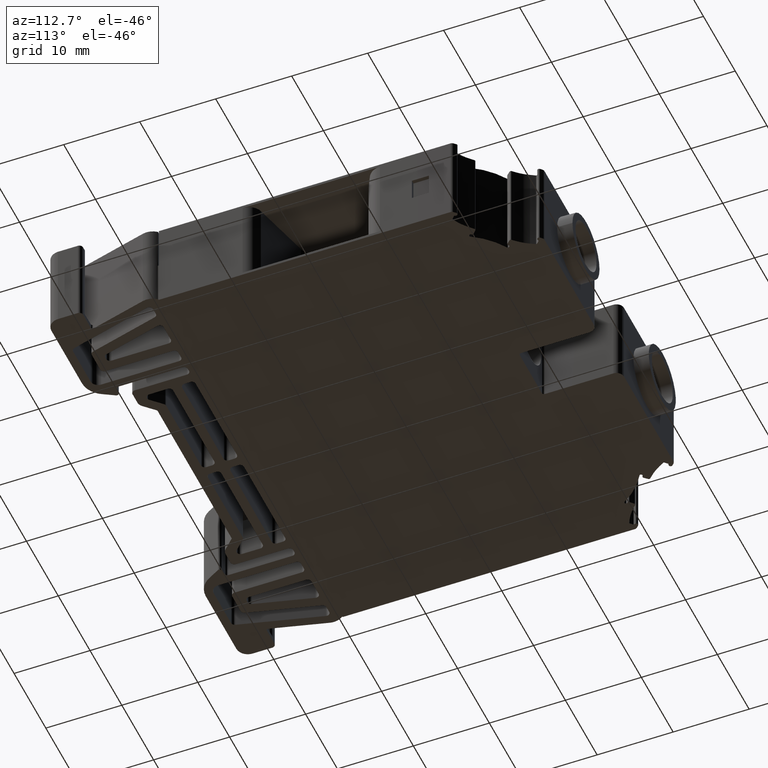
[diagram: clean part render]
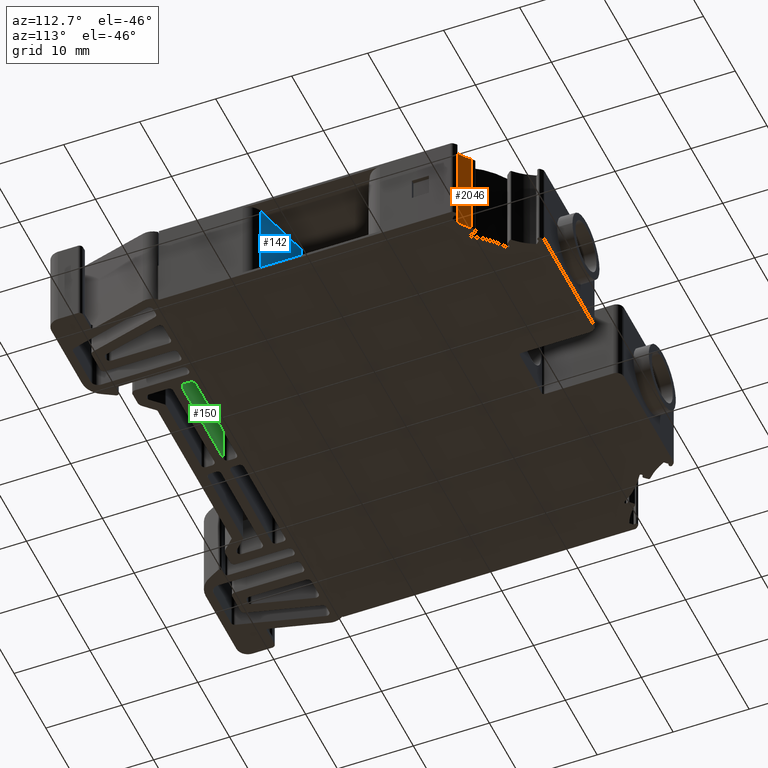
[diagram: same view with three faces highlighted in distinct colors, each labeled with its STEP entity id]
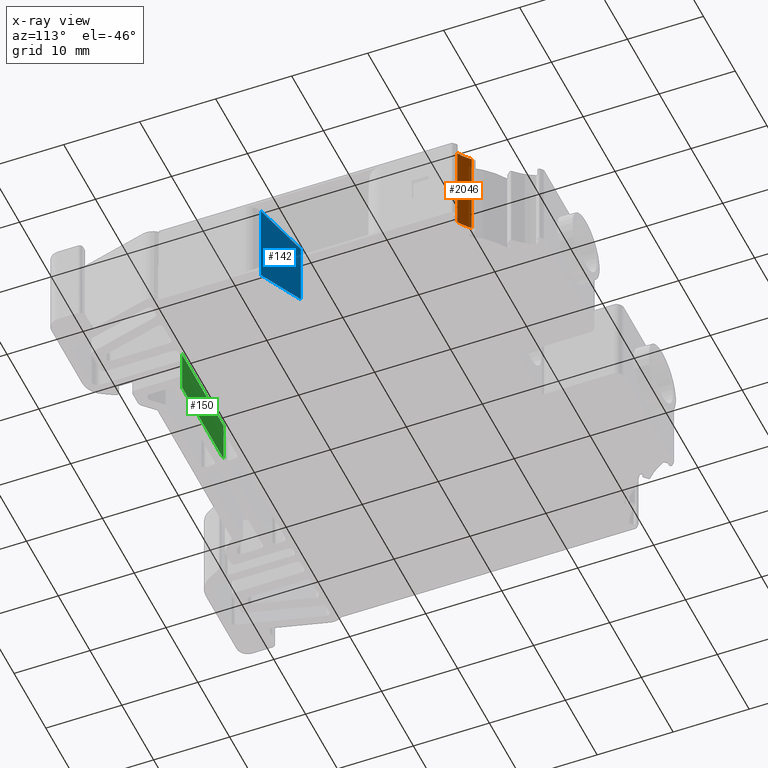
[diagram: x-ray of the same camera — body ghosted, the three highlighted faces saturated]
A machine part, auxiliary view with three faces highlighted in distinct colors.
The next image is the same camera in x-ray (body ghosted, the three faces saturated) — at least one of them is partly hidden behind the body in this view.
Their STEP definitions:

[orange] entity #2046 — the highlighted cylindrical surface (partial cylindrical patch) has radius 7.5 mm, axis along (-0, 0, 1).
#1803 = EDGE_CURVE ( 'NONE', #3716, #3698, #4843, .T. ) ;
#1828 = EDGE_CURVE ( 'NONE', #3741, #3645, #4808, .T. ) ;
#1835 = EDGE_CURVE ( 'NONE', #3645, #3716, #6918, .T. ) ;
#1846 = EDGE_CURVE ( 'NONE', #3698, #3741, #6911, .T. ) ;
#2046 = ADVANCED_FACE ( 'NONE', ( #7989 ), #7979, .F. ) ;
#3388 = EDGE_LOOP ( 'NONE', ( #14061, #14074, #14143, #14062 ) ) ;
#3645 = VERTEX_POINT ( 'NONE', #11806 ) ;
#3698 = VERTEX_POINT ( 'NONE', #11898 ) ;
#3716 = VERTEX_POINT ( 'NONE', #11871 ) ;
#3741 = VERTEX_POINT ( 'NONE', #11888 ) ;
#3817 = AXIS2_PLACEMENT_3D ( 'NONE', #7974, #7981, #8001 ) ;
#4808 = CIRCLE ( 'NONE', #4816, 7.500003262180587900 ) ;
#4816 = AXIS2_PLACEMENT_3D ( 'NONE', #6862, #6880, #6881 ) ;
#4843 = CIRCLE ( 'NONE', #4847, 7.500003262180587900 ) ;
#4847 = AXIS2_PLACEMENT_3D ( 'NONE', #6845, #6819, #6827 ) ;
#4889 = VECTOR ( 'NONE', #6934, 1000.000000000000000 ) ;
#4949 = VECTOR ( 'NONE', #6968, 1000.000000000000000 ) ;
#6819 = DIRECTION ( 'NONE',  ( -1.396592535537252100E-014, 0.0000000000000000000, 1.000000000000000000 ) ) ;
#6827 = DIRECTION ( 'NONE',  ( 1.000000000000000000, 0.0000000000000000000, 1.396592535537252200E-014 ) ) ;
#6845 = CARTESIAN_POINT ( 'NONE',  ( 1782.036554347570000, 815.0587654482960700, 7.372574772901430200E-014 ) ) ;
#6862 = CARTESIAN_POINT ( 'NONE',  ( 1782.036554347570000, 815.0587654482960700, 11.99999999997519100 ) ) ;
#6880 = DIRECTION ( 'NONE',  ( 1.396592535537252100E-014, -0.0000000000000000000, -1.000000000000000000 ) ) ;
#6881 = DIRECTION ( 'NONE',  ( 1.000000000000000000, -1.480296722300844400E-014, 1.387778177157041700E-014 ) ) ;
#6911 = LINE ( 'NONE', #6928, #4949 ) ;
#6912 = CARTESIAN_POINT ( 'NONE',  ( 1776.733251181958800, 809.7554622826887700, 5.999999999999926300 ) ) ;
#6918 = LINE ( 'NONE', #6912, #4889 ) ;
#6928 = CARTESIAN_POINT ( 'NONE',  ( 1778.286556425059600, 808.5635699536333000, 5.999999999999948500 ) ) ;
#6934 = DIRECTION ( 'NONE',  ( 1.396592535537252100E-014, -0.0000000000000000000, -1.000000000000000000 ) ) ;
#6968 = DIRECTION ( 'NONE',  ( -1.396592535537252100E-014, 0.0000000000000000000, 1.000000000000000000 ) ) ;
#7974 = CARTESIAN_POINT ( 'NONE',  ( 1782.036554347570000, 815.0587654482960700, 6.000000000000000000 ) ) ;
#7979 = CYLINDRICAL_SURFACE ( 'NONE', #3817, 7.500003262180587900 ) ;
#7981 = DIRECTION ( 'NONE',  ( -1.396592535537252100E-014, 0.0000000000000000000, 1.000000000000000000 ) ) ;
#7989 = FACE_OUTER_BOUND ( 'NONE', #3388, .T. ) ;
#8001 = DIRECTION ( 'NONE',  ( 1.000000000000000000, 0.0000000000000000000, 1.399342995300017000E-014 ) ) ;
#11806 = CARTESIAN_POINT ( 'NONE',  ( 1776.733251181958800, 809.7554622826887700, 11.99999999997512200 ) ) ;
#11871 = CARTESIAN_POINT ( 'NONE',  ( 1776.733251181959300, 809.7554622826883100, -1.734723475976807100E-015 ) ) ;
#11888 = CARTESIAN_POINT ( 'NONE',  ( 1778.286556441120000, 808.5635699660011800, 11.99999999997514000 ) ) ;
#11898 = CARTESIAN_POINT ( 'NONE',  ( 1778.286556431748100, 808.5635699497709100, 1.084202172485504400E-014 ) ) ;
#14061 = ORIENTED_EDGE ( 'NONE', *, *, #1828, .F. ) ;
#14062 = ORIENTED_EDGE ( 'NONE', *, *, #1835, .F. ) ;
#14074 = ORIENTED_EDGE ( 'NONE', *, *, #1846, .F. ) ;
#14143 = ORIENTED_EDGE ( 'NONE', *, *, #1803, .F. ) ;

[blue] entity #142 — the highlighted planar face has unit normal (-0.342, -0.9397, 0).
#142 = ADVANCED_FACE ( 'NONE', ( #4328 ), #4380, .F. ) ;
#729 = DIRECTION ( 'NONE',  ( -1.396592535537384100E-014, 2.298985663446969900E-014, 1.000000000000000000 ) ) ;
#736 = CARTESIAN_POINT ( 'NONE',  ( 1778.877887846996800, 782.9460108079747400, 5.999999999998876500 ) ) ;
#737 = LINE ( 'NONE', #741, #12861 ) ;
#741 = CARTESIAN_POINT ( 'NONE',  ( 1778.877887846996800, 782.9460108079744000, 11.58537739325993200 ) ) ;
#757 = LINE ( 'NONE', #736, #12863 ) ;
#765 = DIRECTION ( 'NONE',  ( -0.9270529504193395500, 0.3374199121922680800, -0.1634644608927565100 ) ) ;
#1605 = EDGE_CURVE ( 'NONE', #3590, #3636, #757, .T. ) ;
#1607 = EDGE_CURVE ( 'NONE', #3636, #5441, #737, .T. ) ;
#1653 = EDGE_CURVE ( 'NONE', #5469, #3590, #14499, .T. ) ;
#2153 = EDGE_CURVE ( 'NONE', #5441, #5469, #8454, .T. ) ;
#3294 = EDGE_LOOP ( 'NONE', ( #13381, #13387, #13375, #13402 ) ) ;
#3590 = VERTEX_POINT ( 'NONE', #11738 ) ;
#3636 = VERTEX_POINT ( 'NONE', #11820 ) ;
#3788 = VECTOR ( 'NONE', #8423, 1000.000000000000000 ) ;
#4328 = FACE_OUTER_BOUND ( 'NONE', #3294, .T. ) ;
#4370 = CARTESIAN_POINT ( 'NONE',  ( 1779.192527269460700, 782.8314913536647700, 500104.1921884837200 ) ) ;
#4380 = PLANE ( 'NONE',  #13026 ) ;
#4382 = DIRECTION ( 'NONE',  ( -0.3420203515625761000, -0.9396925449938463600, 1.682676618994680800E-014 ) ) ;
#4383 = DIRECTION ( 'NONE',  ( 0.9396925449938462500, -0.3420203515625760400, 0.0000000000000000000 ) ) ;
#5441 = VERTEX_POINT ( 'NONE', #12081 ) ;
#5469 = VERTEX_POINT ( 'NONE', #12142 ) ;
#8423 = DIRECTION ( 'NONE',  ( -5.755096487946875700E-015, -1.581198674504752000E-014, -1.000000000000000000 ) ) ;
#8454 = LINE ( 'NONE', #8458, #3788 ) ;
#8458 = CARTESIAN_POINT ( 'NONE',  ( 1772.169027926863000, 785.3878378173590100, 500104.1921884837200 ) ) ;
#11738 = CARTESIAN_POINT ( 'NONE',  ( 1778.877887848540000, 782.9460108166441600, 0.4146231989987127500 ) ) ;
#11820 = CARTESIAN_POINT ( 'NONE',  ( 1778.877887872354000, 782.9460108079765600, 11.58537724947807800 ) ) ;
#12081 = CARTESIAN_POINT ( 'NONE',  ( 1772.169027941179800, 785.3878378094517500, 10.40242418607987700 ) ) ;
#12142 = CARTESIAN_POINT ( 'NONE',  ( 1772.169027958376300, 785.3878378094516400, 1.597575911423673400 ) ) ;
#12861 = VECTOR ( 'NONE', #765, 1000.000000000000100 ) ;
#12863 = VECTOR ( 'NONE', #729, 1000.000000000000000 ) ;
#12894 = VECTOR ( 'NONE', #14487, 1000.000000000000100 ) ;
#13026 = AXIS2_PLACEMENT_3D ( 'NONE', #4370, #4382, #4383 ) ;
#13375 = ORIENTED_EDGE ( 'NONE', *, *, #1607, .F. ) ;
#13381 = ORIENTED_EDGE ( 'NONE', *, *, #1653, .F. ) ;
#13387 = ORIENTED_EDGE ( 'NONE', *, *, #2153, .F. ) ;
#13402 = ORIENTED_EDGE ( 'NONE', *, *, #1605, .F. ) ;
#14479 = CARTESIAN_POINT ( 'NONE',  ( 1772.169027992768000, 785.3878378094519800, 1.597576106472908200 ) ) ;
#14487 = DIRECTION ( 'NONE',  ( 0.9270529549298102100, -0.3374199121910684800, -0.1634644353150825900 ) ) ;
#14499 = LINE ( 'NONE', #14479, #12894 ) ;

[green] entity #150 — the highlighted planar face has unit normal (-0, 1, 0).
#150 = ADVANCED_FACE ( 'NONE', ( #4406 ), #4439, .T. ) ;
#285 = EDGE_CURVE ( 'NONE', #3511, #3598, #1092, .T. ) ;
#308 = EDGE_CURVE ( 'NONE', #3551, #3511, #1246, .T. ) ;
#1081 = DIRECTION ( 'NONE',  ( -0.0000000000000000000, -0.0000000000000000000, -1.000000000000000000 ) ) ;
#1092 = LINE ( 'NONE', #1099, #12757 ) ;
#1099 = CARTESIAN_POINT ( 'NONE',  ( 1765.294821967010000, 766.8876433158195600, 11.90000000000000000 ) ) ;
#1239 = CARTESIAN_POINT ( 'NONE',  ( 1701.967527464065100, 766.8876433158189900, 5.899999999987859800 ) ) ;
#1246 = LINE ( 'NONE', #1239, #12790 ) ;
#1259 = DIRECTION ( 'NONE',  ( 1.000000000000000000, 8.540175855036751300E-015, -0.0000000000000000000 ) ) ;
#1349 = DIRECTION ( 'NONE',  ( 0.0000000000000000000, 0.0000000000000000000, 1.000000000000000000 ) ) ;
#1361 = LINE ( 'NONE', #1366, #12760 ) ;
#1366 = CARTESIAN_POINT ( 'NONE',  ( 1752.294820052874900, 766.8876433158194500, 11.90000000000000000 ) ) ;
#1493 = EDGE_CURVE ( 'NONE', #3606, #3551, #1361, .T. ) ;
#1759 = EDGE_CURVE ( 'NONE', #3606, #3598, #6669, .T. ) ;
#3372 = EDGE_LOOP ( 'NONE', ( #13605, #13518, #13580, #13568 ) ) ;
#3511 = VERTEX_POINT ( 'NONE', #11690 ) ;
#3551 = VERTEX_POINT ( 'NONE', #11750 ) ;
#3598 = VERTEX_POINT ( 'NONE', #11763 ) ;
#3606 = VERTEX_POINT ( 'NONE', #11799 ) ;
#4402 = DIRECTION ( 'NONE',  ( -8.540175855036751300E-015, 1.000000000000000000, 0.0000000000000000000 ) ) ;
#4406 = FACE_OUTER_BOUND ( 'NONE', #3372, .T. ) ;
#4439 = PLANE ( 'NONE',  #13033 ) ;
#4442 = CARTESIAN_POINT ( 'NONE',  ( 1701.967527464065100, 766.8876433158189900, 11.90000000000000000 ) ) ;
#4445 = DIRECTION ( 'NONE',  ( -1.000000000000000000, -8.540175855036751300E-015, 0.0000000000000000000 ) ) ;
#4674 = VECTOR ( 'NONE', #6677, 1000.000000000000000 ) ;
#6669 = LINE ( 'NONE', #6716, #4674 ) ;
#6677 = DIRECTION ( 'NONE',  ( 1.000000000000000000, -0.0000000000000000000, 0.0000000000000000000 ) ) ;
#6716 = CARTESIAN_POINT ( 'NONE',  ( 1701.967527464065100, 766.8876433158200100, 0.1499999999999999900 ) ) ;
#11690 = CARTESIAN_POINT ( 'NONE',  ( 1765.294821967010000, 766.8876433158197900, 5.899999999987859800 ) ) ;
#11750 = CARTESIAN_POINT ( 'NONE',  ( 1752.294820052874900, 766.8876433158196700, 5.899999999987859800 ) ) ;
#11763 = CARTESIAN_POINT ( 'NONE',  ( 1765.294821967010200, 766.8876433158197900, 0.1500000000000004700 ) ) ;
#11799 = CARTESIAN_POINT ( 'NONE',  ( 1752.294820052874900, 766.8876433158197900, 0.1500000000000004700 ) ) ;
#12757 = VECTOR ( 'NONE', #1081, 1000.000000000000000 ) ;
#12760 = VECTOR ( 'NONE', #1349, 1000.000000000000000 ) ;
#12790 = VECTOR ( 'NONE', #1259, 1000.000000000000000 ) ;
#13033 = AXIS2_PLACEMENT_3D ( 'NONE', #4442, #4402, #4445 ) ;
#13518 = ORIENTED_EDGE ( 'NONE', *, *, #1759, .F. ) ;
#13568 = ORIENTED_EDGE ( 'NONE', *, *, #308, .T. ) ;
#13580 = ORIENTED_EDGE ( 'NONE', *, *, #1493, .T. ) ;
#13605 = ORIENTED_EDGE ( 'NONE', *, *, #285, .T. ) ;